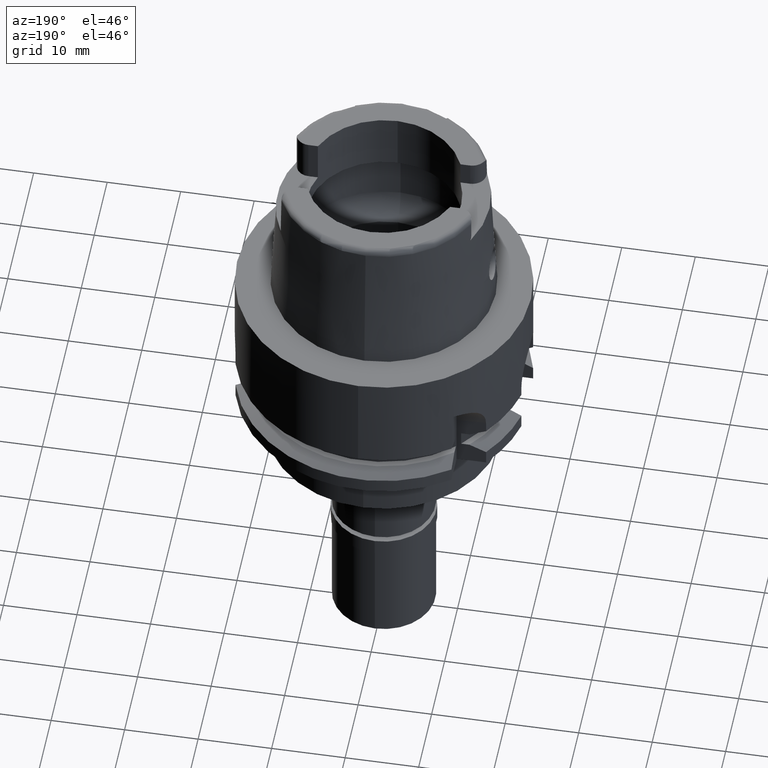
[diagram: clean part render]
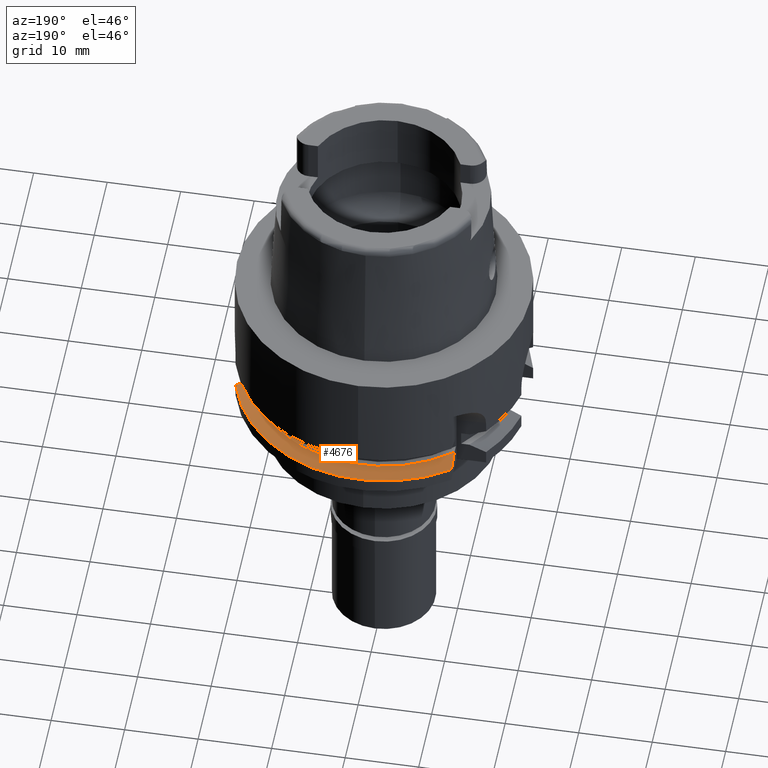
[diagram: same view with one face highlighted and labeled with its STEP entity id]
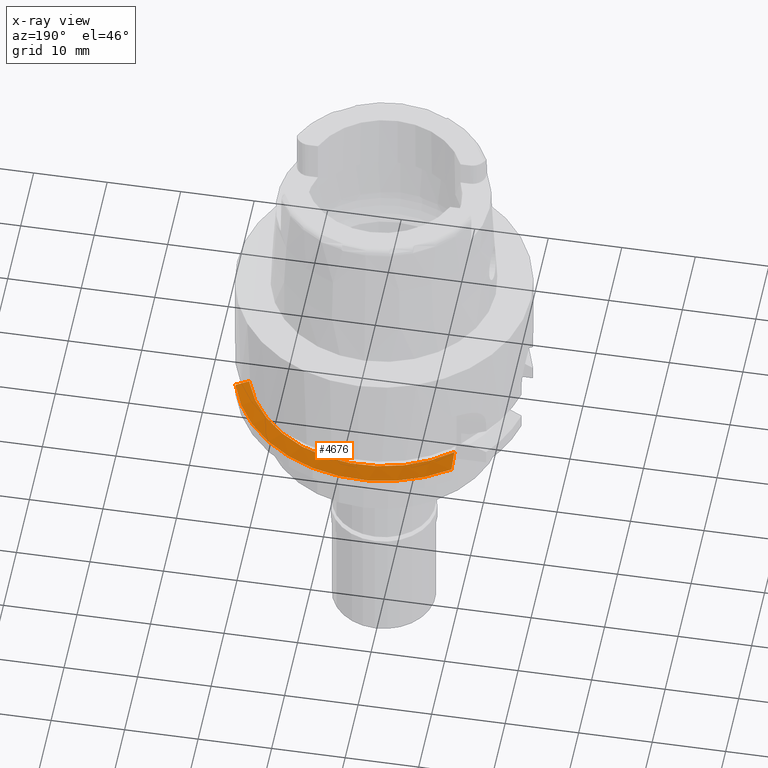
[diagram: x-ray of the same camera — body ghosted, the highlighted face saturated]
A machine part, auxiliary view. The second image highlights one B-rep face of the part: STEP entity #4676.
The next image is the same camera in x-ray: the body ghosted, the highlighted face saturated — about 0% of this face is hidden behind the body in this view.
In plain terms, the highlighted conical surface has half-angle 60 deg.
Its self-contained STEP definition (entity closure, byte-faithful):
#147 = CARTESIAN_POINT ( 'NONE',  ( -12.00000837203000081, 15.99999372097000006, -18.02075773440000006 ) ) ;
#165 = CARTESIAN_POINT ( 'NONE',  ( 0.0000000000000000000, 0.0000000000000000000, -18.02072594216000212 ) ) ;
#306 = ORIENTED_EDGE ( 'NONE', *, *, #5388, .F. ) ;
#322 = FACE_OUTER_BOUND ( 'NONE', #858, .T. ) ;
#508 = CARTESIAN_POINT ( 'NONE',  ( 19.22888438503999708, 5.500000482449000749, -18.02072998519999913 ) ) ;
#535 = EDGE_CURVE ( 'NONE', #1166, #1043, #2288, .T. ) ;
#619 = CARTESIAN_POINT ( 'NONE',  ( -12.00000000000000000, 14.44842195221830750, -17.31394716292273372 ) ) ;
#798 = DIRECTION ( 'NONE',  ( 0.0000000000000000000, 0.0000000000000000000, -1.000000000000000000 ) ) ;
#858 = EDGE_LOOP ( 'NONE', ( #3703, #2588, #3856, #306 ) ) ;
#997 = CARTESIAN_POINT ( 'NONE',  ( 17.38268112612999872, 5.500000148510999942, -17.00000000000000000 ) ) ;
#1043 = VERTEX_POINT ( 'NONE', #2911 ) ;
#1073 = CIRCLE ( 'NONE', #1238, 18.23205080757000118 ) ;
#1165 = DIRECTION ( 'NONE',  ( 0.0000000000000000000, 0.0000000000000000000, -1.000000000000000000 ) ) ;
#1166 = VERTEX_POINT ( 'NONE', #2230 ) ;
#1238 = AXIS2_PLACEMENT_3D ( 'NONE', #4267, #798, #4106 ) ;
#1376 = CARTESIAN_POINT ( 'NONE',  ( -12.00000000000000000, 15.20637145111164124, -17.65419974105606471 ) ) ;
#1496 = EDGE_CURVE ( 'NONE', #1591, #1166, #1073, .T. ) ;
#1591 = VERTEX_POINT ( 'NONE', #2860 ) ;
#1743 = AXIS2_PLACEMENT_3D ( 'NONE', #1983, #1165, #5217 ) ;
#1834 = DIRECTION ( 'NONE',  ( 0.0000000000000000000, 0.0000000000000000000, -1.000000000000000000 ) ) ;
#1872 = CARTESIAN_POINT ( 'NONE',  ( 18.58583609747323351, 5.500000964500971534, -17.66377629408806982 ) ) ;
#1983 = CARTESIAN_POINT ( 'NONE',  ( 0.0000000000000000000, 0.0000000000000000000, -17.51036297107999928 ) ) ;
#2056 = CARTESIAN_POINT ( 'NONE',  ( -12.00000837203000081, 15.99999372097000006, -18.02075773440000006 ) ) ;
#2230 = CARTESIAN_POINT ( 'NONE',  ( 17.38268112612999872, 5.500000148510999942, -17.00000000000000000 ) ) ;
#2240 = CARTESIAN_POINT ( 'NONE',  ( -12.00000248716000151, 13.72614522429000061, -17.00000000000000000 ) ) ;
#2288 = B_SPLINE_CURVE_WITH_KNOTS ( 'NONE', 3,
 ( #997, #4286, #1872, #508 ),
 .UNSPECIFIED., .F., .F.,
 ( 4, 4 ),
 ( 0.0000000000000000000, 1.000000000000000000 ),
 .UNSPECIFIED. ) ;
#2398 = AXIS2_PLACEMENT_3D ( 'NONE', #165, #1834, #5086 ) ;
#2588 = ORIENTED_EDGE ( 'NONE', *, *, #1496, .T. ) ;
#2592 = EDGE_CURVE ( 'NONE', #1591, #5096, #3558, .T. ) ;
#2860 = CARTESIAN_POINT ( 'NONE',  ( -12.00000248716000151, 13.72614522429000061, -17.00000000000000000 ) ) ;
#2911 = CARTESIAN_POINT ( 'NONE',  ( 19.22888438503999708, 5.500000482449000749, -18.02072998519999913 ) ) ;
#3558 = B_SPLINE_CURVE_WITH_KNOTS ( 'NONE', 3,
 ( #2240, #619, #1376, #147 ),
 .UNSPECIFIED., .F., .F.,
 ( 4, 4 ),
 ( 0.0000000000000000000, 1.000000000000000000 ),
 .UNSPECIFIED. ) ;
#3703 = ORIENTED_EDGE ( 'NONE', *, *, #2592, .F. ) ;
#3856 = ORIENTED_EDGE ( 'NONE', *, *, #535, .T. ) ;
#4098 = CONICAL_SURFACE ( 'NONE', #1743, 19.11602540378000015, 1.047197551196400456 ) ;
#4106 = DIRECTION ( 'NONE',  ( 0.0000000000000000000, 1.000000000000000000, 0.0000000000000000000 ) ) ;
#4267 = CARTESIAN_POINT ( 'NONE',  ( 0.0000000000000000000, 0.0000000000000000000, -17.00000000000000000 ) ) ;
#4286 = CARTESIAN_POINT ( 'NONE',  ( 17.97044155809633992, 5.500000297410905681, -17.32353369190679970 ) ) ;
#4676 = ADVANCED_FACE ( 'NONE', ( #322 ), #4098, .T. ) ;
#4784 = CIRCLE ( 'NONE', #2398, 20.00000000000000000 ) ;
#5086 = DIRECTION ( 'NONE',  ( -0.5999999999999999778, 0.8000000000000000444, 0.0000000000000000000 ) ) ;
#5096 = VERTEX_POINT ( 'NONE', #2056 ) ;
#5217 = DIRECTION ( 'NONE',  ( 0.0000000000000000000, -1.000000000000000000, 0.0000000000000000000 ) ) ;
#5388 = EDGE_CURVE ( 'NONE', #5096, #1043, #4784, .T. ) ;